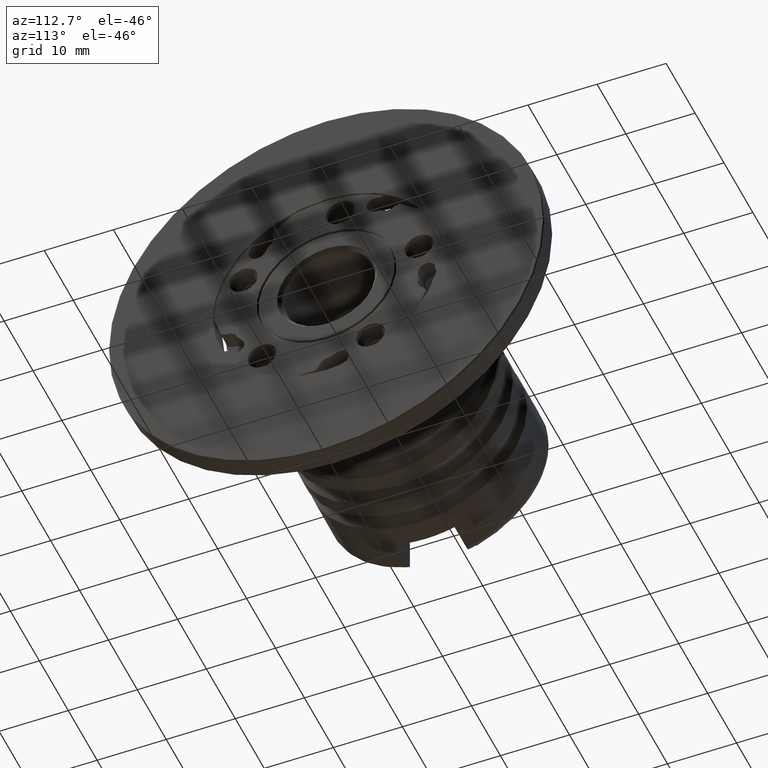
[diagram: clean part render]
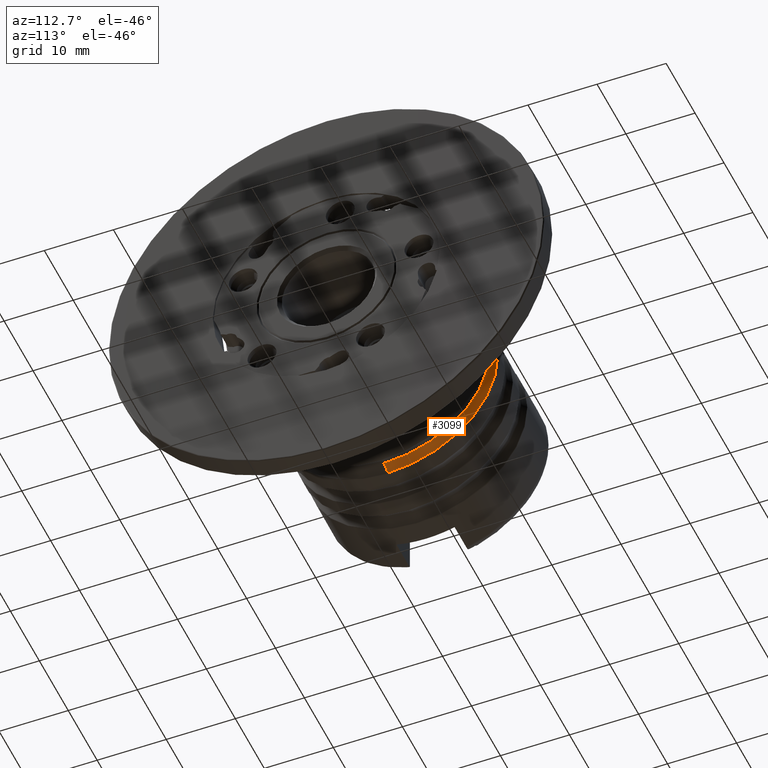
[diagram: same view with one face highlighted and labeled with its STEP entity id]
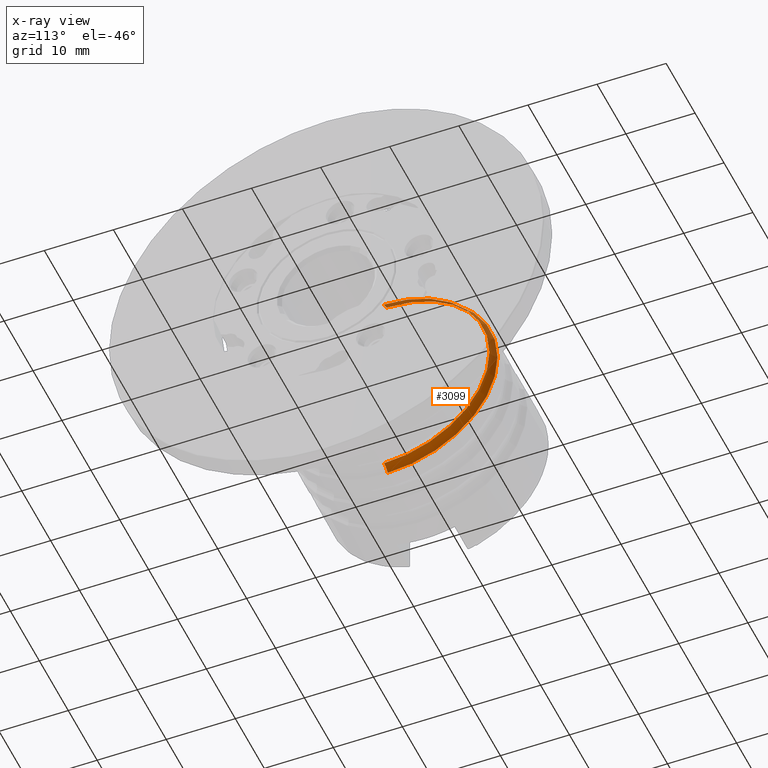
[diagram: x-ray of the same camera — body ghosted, the highlighted face saturated]
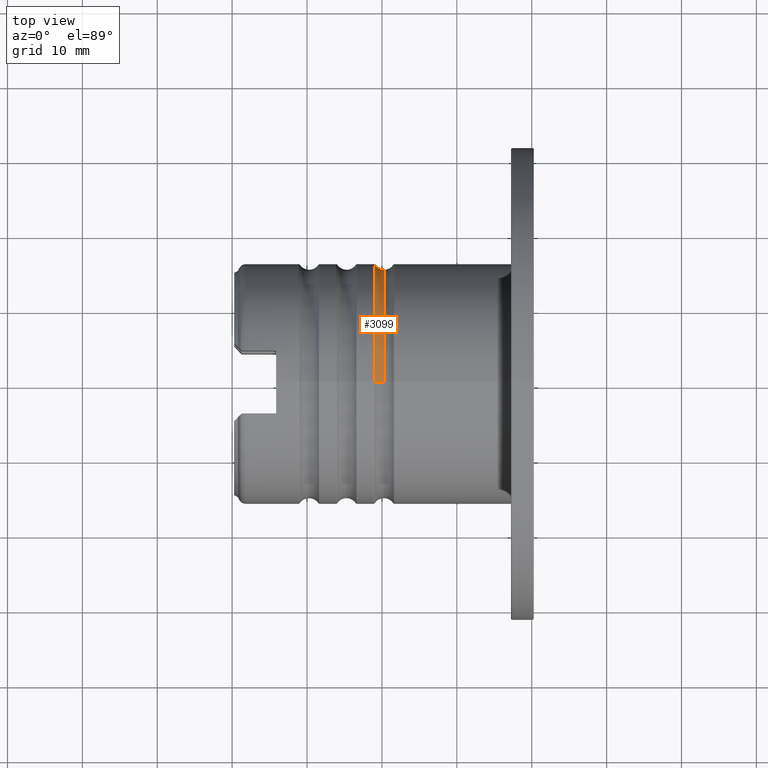
[diagram: same view with one face highlighted and labeled with its STEP entity id]
A machine part, auxiliary view. The second image highlights one B-rep face of the part: STEP entity #3099.
The next image is the same camera in x-ray: the body ghosted, the highlighted face saturated — about 27% of this face is hidden behind the body in this view.
A second angle (top view) of the same face is appended — the face is thin or edge-on in the first view.
In plain terms, the highlighted toroidal blend (fillet) surface has major radius 16.75 mm and minor (blend) radius 1.5 mm.
Its self-contained STEP definition (entity closure, byte-faithful):
#75 = CARTESIAN_POINT ( 'NONE',  ( -19.72493930000000262, 0.0000000000000000000, 16.74999999999999645 ) ) ;
#99 = ORIENTED_EDGE ( 'NONE', *, *, #5323, .T. ) ;
#116 = DIRECTION ( 'NONE',  ( -1.000000000000000000, -0.0000000000000000000, -0.0000000000000000000 ) ) ;
#159 = DIRECTION ( 'NONE',  ( -1.000000000000000000, -0.0000000000000000000, -0.0000000000000000000 ) ) ;
#178 = EDGE_CURVE ( 'NONE', #6033, #5663, #4770, .T. ) ;
#219 = TOROIDAL_SURFACE ( 'NONE', #4496, 16.74999999999999645, 1.499999999999999778 ) ;
#288 = VERTEX_POINT ( 'NONE', #6589 ) ;
#587 = DIRECTION ( 'NONE',  ( 0.0000000000000000000, -1.000000000000000000, 0.0000000000000000000 ) ) ;
#590 = ORIENTED_EDGE ( 'NONE', *, *, #4416, .T. ) ;
#909 = ORIENTED_EDGE ( 'NONE', *, *, #5959, .F. ) ;
#1194 = CARTESIAN_POINT ( 'NONE',  ( -20.96886919822397388, 0.0000000000000000000, 0.0000000000000000000 ) ) ;
#1231 = EDGE_LOOP ( 'NONE', ( #99, #590, #909, #2916 ) ) ;
#2311 = CIRCLE ( 'NONE', #2733, 1.499999999999999556 ) ;
#2482 = VERTEX_POINT ( 'NONE', #2707 ) ;
#2586 = CARTESIAN_POINT ( 'NONE',  ( -20.96886919822397388, 0.0000000000000000000, 15.91176470588235148 ) ) ;
#2707 = CARTESIAN_POINT ( 'NONE',  ( -19.72493930000000262, 0.0000000000000000000, 15.24999999999999822 ) ) ;
#2733 = AXIS2_PLACEMENT_3D ( 'NONE', #75, #587, #4263 ) ;
#2915 = AXIS2_PLACEMENT_3D ( 'NONE', #6107, #6620, #3483 ) ;
#2916 = ORIENTED_EDGE ( 'NONE', *, *, #178, .F. ) ;
#3099 = ADVANCED_FACE ( 'NONE', ( #4945 ), #219, .F. ) ;
#3483 = DIRECTION ( 'NONE',  ( 0.0000000000000000000, -1.224646799147353454E-16, 1.000000000000000000 ) ) ;
#3642 = CARTESIAN_POINT ( 'NONE',  ( -19.72493930000000262, 0.0000000000000000000, 0.0000000000000000000 ) ) ;
#3847 = AXIS2_PLACEMENT_3D ( 'NONE', #1194, #116, #6413 ) ;
#4263 = DIRECTION ( 'NONE',  ( 0.0000000000000000000, 0.0000000000000000000, -1.000000000000000000 ) ) ;
#4416 = EDGE_CURVE ( 'NONE', #2482, #288, #6114, .T. ) ;
#4496 = AXIS2_PLACEMENT_3D ( 'NONE', #3642, #6215, #6233 ) ;
#4767 = AXIS2_PLACEMENT_3D ( 'NONE', #5309, #159, #4784 ) ;
#4770 = CIRCLE ( 'NONE', #3847, 15.91176470588235148 ) ;
#4784 = DIRECTION ( 'NONE',  ( 0.0000000000000000000, 0.0000000000000000000, 1.000000000000000000 ) ) ;
#4945 = FACE_OUTER_BOUND ( 'NONE', #1231, .T. ) ;
#5309 = CARTESIAN_POINT ( 'NONE',  ( -19.72493930000000262, 0.0000000000000000000, 0.0000000000000000000 ) ) ;
#5323 = EDGE_CURVE ( 'NONE', #6033, #2482, #2311, .T. ) ;
#5362 = CARTESIAN_POINT ( 'NONE',  ( -20.96886919822397388, 1.954032025110114680E-15, -15.91176470588235148 ) ) ;
#5663 = VERTEX_POINT ( 'NONE', #5362 ) ;
#5959 = EDGE_CURVE ( 'NONE', #5663, #288, #6562, .T. ) ;
#6033 = VERTEX_POINT ( 'NONE', #2586 ) ;
#6107 = CARTESIAN_POINT ( 'NONE',  ( -19.72493930000000262, 2.051283388571816493E-15, -16.74999999999999645 ) ) ;
#6114 = CIRCLE ( 'NONE', #4767, 15.24999999999999822 ) ;
#6215 = DIRECTION ( 'NONE',  ( -1.000000000000000000, -0.0000000000000000000, -0.0000000000000000000 ) ) ;
#6233 = DIRECTION ( 'NONE',  ( 0.0000000000000000000, 0.0000000000000000000, 1.000000000000000000 ) ) ;
#6413 = DIRECTION ( 'NONE',  ( 0.0000000000000000000, 0.0000000000000000000, 1.000000000000000000 ) ) ;
#6562 = CIRCLE ( 'NONE', #2915, 1.499999999999999556 ) ;
#6589 = CARTESIAN_POINT ( 'NONE',  ( -19.72493930000000262, 1.867586368699713376E-15, -15.24999999999999822 ) ) ;
#6620 = DIRECTION ( 'NONE',  ( -0.0000000000000000000, 1.000000000000000000, 1.224646799147353207E-16 ) ) ;